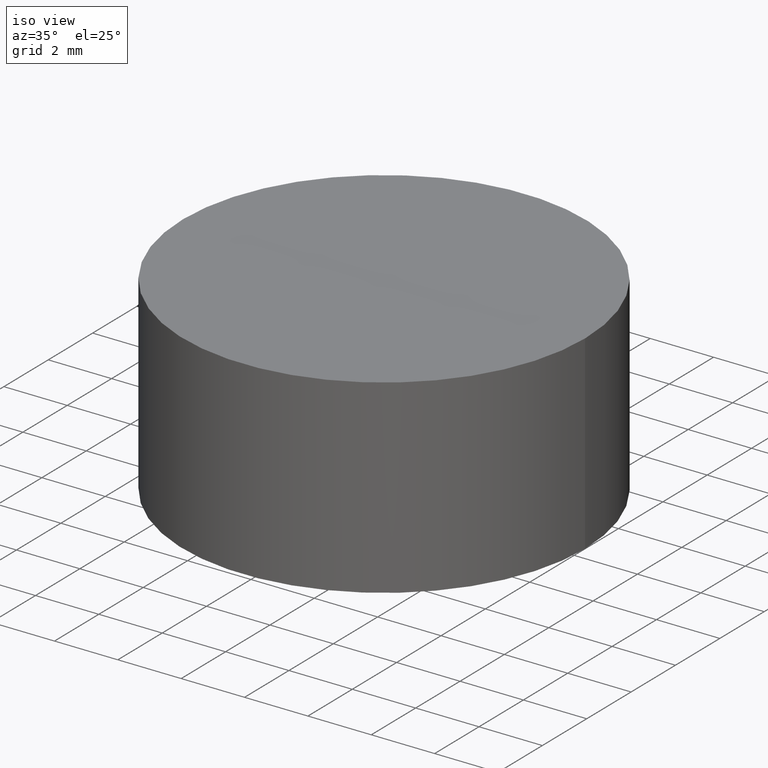
[diagram: clean part render]
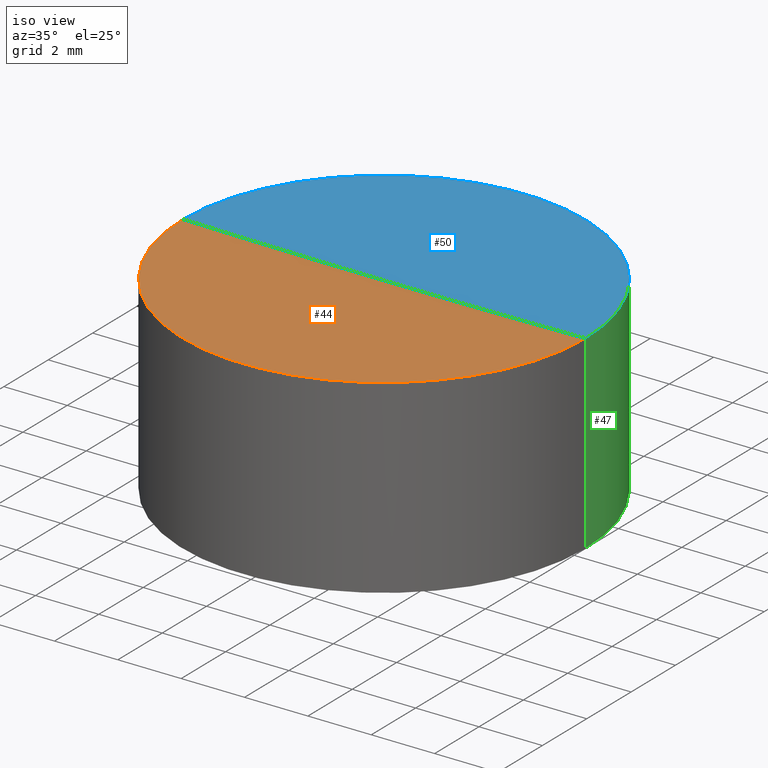
[diagram: same view with three faces highlighted in distinct colors, each labeled with its STEP entity id]
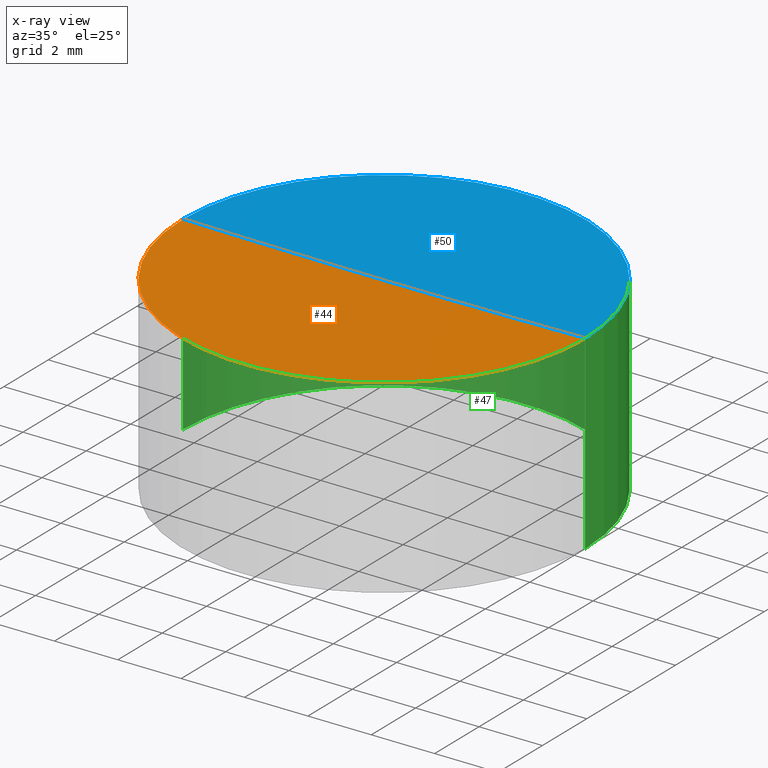
[diagram: x-ray of the same camera — body ghosted, the three highlighted faces saturated]
A machine part, iso view with three faces highlighted in distinct colors.
The next image is the same camera in x-ray (body ghosted, the three faces saturated) — at least one of them is partly hidden behind the body in this view.
Their STEP definitions:

[orange] entity #44 — the highlighted spherical surface has radius 400 mm.
#2 = CARTESIAN_POINT ( 'NONE',  ( 5.030698080332740574E-14, 0.000000000000000000, 405.9495936990060159 ) ) ;
#10 = DIRECTION ( 'NONE',  ( 0.000000000000000000, -1.000000000000000000, -0.000000000000000000 ) ) ;
#12 = EDGE_CURVE ( 'NONE', #78, #147, #63, .T. ) ;
#16 = ORIENTED_EDGE ( 'NONE', *, *, #190, .F. ) ;
#24 = DIRECTION ( 'NONE',  ( 0.000000000000000000, 0.000000000000000000, 1.000000000000000000 ) ) ;
#42 = DIRECTION ( 'NONE',  ( 1.000000000000000000, 0.000000000000000000, 0.000000000000000000 ) ) ;
#44 = ADVANCED_FACE ( 'NONE', ( #82 ), #114, .F. ) ;
#54 = DIRECTION ( 'NONE',  ( 1.000000000000000000, 0.000000000000000000, 0.000000000000000000 ) ) ;
#63 = CIRCLE ( 'NONE', #191, 6.350000000003989342 ) ;
#66 = CIRCLE ( 'NONE', #184, 399.9999999999999432 ) ;
#69 = DIRECTION ( 'NONE',  ( 0.000000000000000000, 1.000000000000000000, -0.000000000000000000 ) ) ;
#71 = EDGE_CURVE ( 'NONE', #78, #95, #66, .T. ) ;
#78 = VERTEX_POINT ( 'NONE', #133 ) ;
#80 = ORIENTED_EDGE ( 'NONE', *, *, #12, .F. ) ;
#82 = FACE_OUTER_BOUND ( 'NONE', #148, .T. ) ;
#95 = VERTEX_POINT ( 'NONE', #132 ) ;
#114 = SPHERICAL_SURFACE ( 'NONE', #177, 400.0000000000000000 ) ;
#126 = AXIS2_PLACEMENT_3D ( 'NONE', #2, #158, #186 ) ;
#129 = CARTESIAN_POINT ( 'NONE',  ( 5.030698080332740574E-14, 0.000000000000000000, 405.9495936990060159 ) ) ;
#130 = DIRECTION ( 'NONE',  ( -0.000000000000000000, -0.000000000000000000, -1.000000000000000000 ) ) ;
#132 = CARTESIAN_POINT ( 'NONE',  ( 7.479991678627446061E-14, 0.000000000000000000, 5.949593699005994551 ) ) ;
#133 = CARTESIAN_POINT ( 'NONE',  ( 6.350000000004039080, 7.776507174590639307E-16, 6.000000000000005329 ) ) ;
#147 = VERTEX_POINT ( 'NONE', #181 ) ;
#148 = EDGE_LOOP ( 'NONE', ( #16, #80, #162 ) ) ;
#152 = CIRCLE ( 'NONE', #126, 400.0000000000000000 ) ;
#158 = DIRECTION ( 'NONE',  ( 1.224646799147353207E-16, -1.000000000000000000, 0.000000000000000000 ) ) ;
#162 = ORIENTED_EDGE ( 'NONE', *, *, #71, .T. ) ;
#165 = CARTESIAN_POINT ( 'NONE',  ( 5.030698080332740574E-14, 0.000000000000000000, 6.000000000000005329 ) ) ;
#177 = AXIS2_PLACEMENT_3D ( 'NONE', #192, #10, #54 ) ;
#181 = CARTESIAN_POINT ( 'NONE',  ( -6.350000000003939604, 0.000000000000000000, 6.000000000000005329 ) ) ;
#184 = AXIS2_PLACEMENT_3D ( 'NONE', #129, #69, #24 ) ;
#186 = DIRECTION ( 'NONE',  ( 1.000000000000000000, 1.224646799147353207E-16, 0.000000000000000000 ) ) ;
#190 = EDGE_CURVE ( 'NONE', #147, #95, #152, .T. ) ;
#191 = AXIS2_PLACEMENT_3D ( 'NONE', #165, #130, #42 ) ;
#192 = CARTESIAN_POINT ( 'NONE',  ( 5.030698080332740574E-14, 0.000000000000000000, 405.9495936990060159 ) ) ;

[blue] entity #50 — the highlighted spherical surface has radius 400 mm.
#2 = CARTESIAN_POINT ( 'NONE',  ( 5.030698080332740574E-14, 0.000000000000000000, 405.9495936990060159 ) ) ;
#18 = EDGE_LOOP ( 'NONE', ( #140, #116, #110 ) ) ;
#24 = DIRECTION ( 'NONE',  ( 0.000000000000000000, 0.000000000000000000, 1.000000000000000000 ) ) ;
#28 = DIRECTION ( 'NONE',  ( -0.000000000000000000, -0.000000000000000000, -1.000000000000000000 ) ) ;
#43 = FACE_OUTER_BOUND ( 'NONE', #18, .T. ) ;
#50 = ADVANCED_FACE ( 'NONE', ( #43 ), #193, .F. ) ;
#56 = DIRECTION ( 'NONE',  ( 1.000000000000000000, 0.000000000000000000, 0.000000000000000000 ) ) ;
#58 = CARTESIAN_POINT ( 'NONE',  ( 5.030698080332740574E-14, 0.000000000000000000, 6.000000000000005329 ) ) ;
#66 = CIRCLE ( 'NONE', #184, 399.9999999999999432 ) ;
#69 = DIRECTION ( 'NONE',  ( 0.000000000000000000, 1.000000000000000000, -0.000000000000000000 ) ) ;
#71 = EDGE_CURVE ( 'NONE', #78, #95, #66, .T. ) ;
#78 = VERTEX_POINT ( 'NONE', #133 ) ;
#86 = DIRECTION ( 'NONE',  ( 1.000000000000000000, 0.000000000000000000, 0.000000000000000000 ) ) ;
#95 = VERTEX_POINT ( 'NONE', #132 ) ;
#100 = AXIS2_PLACEMENT_3D ( 'NONE', #180, #102, #56 ) ;
#102 = DIRECTION ( 'NONE',  ( 0.000000000000000000, -1.000000000000000000, -0.000000000000000000 ) ) ;
#110 = ORIENTED_EDGE ( 'NONE', *, *, #71, .F. ) ;
#116 = ORIENTED_EDGE ( 'NONE', *, *, #190, .T. ) ;
#118 = AXIS2_PLACEMENT_3D ( 'NONE', #58, #28, #86 ) ;
#126 = AXIS2_PLACEMENT_3D ( 'NONE', #2, #158, #186 ) ;
#129 = CARTESIAN_POINT ( 'NONE',  ( 5.030698080332740574E-14, 0.000000000000000000, 405.9495936990060159 ) ) ;
#132 = CARTESIAN_POINT ( 'NONE',  ( 7.479991678627446061E-14, 0.000000000000000000, 5.949593699005994551 ) ) ;
#133 = CARTESIAN_POINT ( 'NONE',  ( 6.350000000004039080, 7.776507174590639307E-16, 6.000000000000005329 ) ) ;
#140 = ORIENTED_EDGE ( 'NONE', *, *, #169, .F. ) ;
#147 = VERTEX_POINT ( 'NONE', #181 ) ;
#152 = CIRCLE ( 'NONE', #126, 400.0000000000000000 ) ;
#157 = CIRCLE ( 'NONE', #118, 6.350000000003989342 ) ;
#158 = DIRECTION ( 'NONE',  ( 1.224646799147353207E-16, -1.000000000000000000, 0.000000000000000000 ) ) ;
#169 = EDGE_CURVE ( 'NONE', #147, #78, #157, .T. ) ;
#180 = CARTESIAN_POINT ( 'NONE',  ( 5.030698080332740574E-14, 0.000000000000000000, 405.9495936990060159 ) ) ;
#181 = CARTESIAN_POINT ( 'NONE',  ( -6.350000000003939604, 0.000000000000000000, 6.000000000000005329 ) ) ;
#184 = AXIS2_PLACEMENT_3D ( 'NONE', #129, #69, #24 ) ;
#186 = DIRECTION ( 'NONE',  ( 1.000000000000000000, 1.224646799147353207E-16, 0.000000000000000000 ) ) ;
#190 = EDGE_CURVE ( 'NONE', #147, #95, #152, .T. ) ;
#193 = SPHERICAL_SURFACE ( 'NONE', #100, 400.0000000000000000 ) ;

[green] entity #47 — the highlighted cylindrical surface (partial cylindrical patch) has radius 6.35 mm, axis along (-0, -0, -1).
#5 = AXIS2_PLACEMENT_3D ( 'NONE', #9, #115, #72 ) ;
#7 = EDGE_CURVE ( 'NONE', #78, #55, #151, .T. ) ;
#8 = CARTESIAN_POINT ( 'NONE',  ( 0.000000000000000000, 0.000000000000000000, 6.000000000000000000 ) ) ;
#9 = CARTESIAN_POINT ( 'NONE',  ( 0.000000000000000000, 0.000000000000000000, 0.000000000000000000 ) ) ;
#20 = VECTOR ( 'NONE', #68, 1000.000000000000000 ) ;
#25 = CARTESIAN_POINT ( 'NONE',  ( 6.349999999999999645, 7.776507174585692163E-16, 6.000000000000000000 ) ) ;
#28 = DIRECTION ( 'NONE',  ( -0.000000000000000000, -0.000000000000000000, -1.000000000000000000 ) ) ;
#29 = AXIS2_PLACEMENT_3D ( 'NONE', #8, #89, #67 ) ;
#30 = EDGE_CURVE ( 'NONE', #147, #183, #31, .T. ) ;
#31 = LINE ( 'NONE', #83, #48 ) ;
#34 = CARTESIAN_POINT ( 'NONE',  ( -6.349999999999999645, 0.000000000000000000, 0.000000000000000000 ) ) ;
#40 = FACE_OUTER_BOUND ( 'NONE', #84, .T. ) ;
#47 = ADVANCED_FACE ( 'NONE', ( #40 ), #194, .T. ) ;
#48 = VECTOR ( 'NONE', #101, 1000.000000000000000 ) ;
#52 = ORIENTED_EDGE ( 'NONE', *, *, #7, .T. ) ;
#55 = VERTEX_POINT ( 'NONE', #167 ) ;
#58 = CARTESIAN_POINT ( 'NONE',  ( 5.030698080332740574E-14, 0.000000000000000000, 6.000000000000005329 ) ) ;
#67 = DIRECTION ( 'NONE',  ( -1.000000000000000000, 0.000000000000000000, 0.000000000000000000 ) ) ;
#68 = DIRECTION ( 'NONE',  ( -0.000000000000000000, -0.000000000000000000, -1.000000000000000000 ) ) ;
#72 = DIRECTION ( 'NONE',  ( 1.000000000000000000, 0.000000000000000000, 0.000000000000000000 ) ) ;
#76 = EDGE_CURVE ( 'NONE', #55, #183, #88, .T. ) ;
#78 = VERTEX_POINT ( 'NONE', #133 ) ;
#83 = CARTESIAN_POINT ( 'NONE',  ( -6.349999999999999645, 0.000000000000000000, 6.000000000000000000 ) ) ;
#84 = EDGE_LOOP ( 'NONE', ( #197, #52, #175, #141 ) ) ;
#86 = DIRECTION ( 'NONE',  ( 1.000000000000000000, 0.000000000000000000, 0.000000000000000000 ) ) ;
#88 = CIRCLE ( 'NONE', #5, 6.349999999999999645 ) ;
#89 = DIRECTION ( 'NONE',  ( -0.000000000000000000, -0.000000000000000000, -1.000000000000000000 ) ) ;
#101 = DIRECTION ( 'NONE',  ( -0.000000000000000000, -0.000000000000000000, -1.000000000000000000 ) ) ;
#115 = DIRECTION ( 'NONE',  ( 0.000000000000000000, 0.000000000000000000, 1.000000000000000000 ) ) ;
#118 = AXIS2_PLACEMENT_3D ( 'NONE', #58, #28, #86 ) ;
#133 = CARTESIAN_POINT ( 'NONE',  ( 6.350000000004039080, 7.776507174590639307E-16, 6.000000000000005329 ) ) ;
#141 = ORIENTED_EDGE ( 'NONE', *, *, #30, .F. ) ;
#147 = VERTEX_POINT ( 'NONE', #181 ) ;
#151 = LINE ( 'NONE', #25, #20 ) ;
#157 = CIRCLE ( 'NONE', #118, 6.350000000003989342 ) ;
#167 = CARTESIAN_POINT ( 'NONE',  ( 6.349999999999999645, 7.776507174585692163E-16, 0.000000000000000000 ) ) ;
#169 = EDGE_CURVE ( 'NONE', #147, #78, #157, .T. ) ;
#175 = ORIENTED_EDGE ( 'NONE', *, *, #76, .T. ) ;
#181 = CARTESIAN_POINT ( 'NONE',  ( -6.350000000003939604, 0.000000000000000000, 6.000000000000005329 ) ) ;
#183 = VERTEX_POINT ( 'NONE', #34 ) ;
#194 = CYLINDRICAL_SURFACE ( 'NONE', #29, 6.349999999999999645 ) ;
#197 = ORIENTED_EDGE ( 'NONE', *, *, #169, .T. ) ;